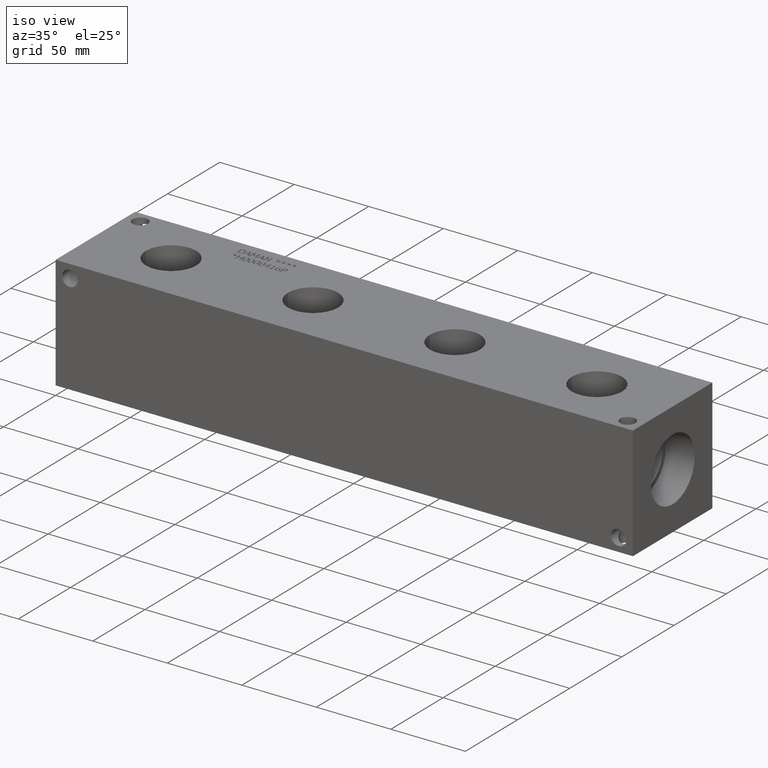
[diagram: clean part render]
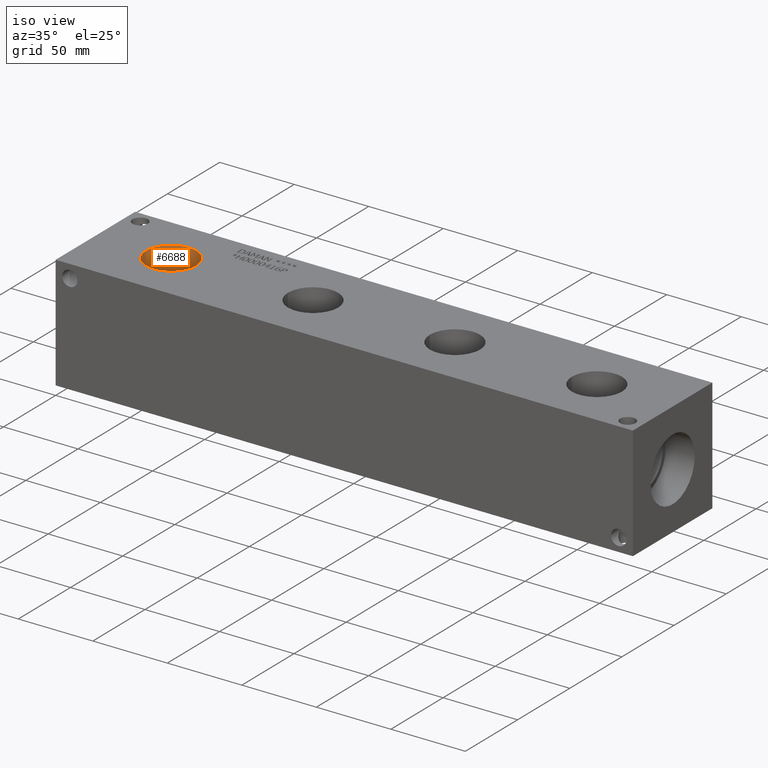
[diagram: same view with one face highlighted and labeled with its STEP entity id]
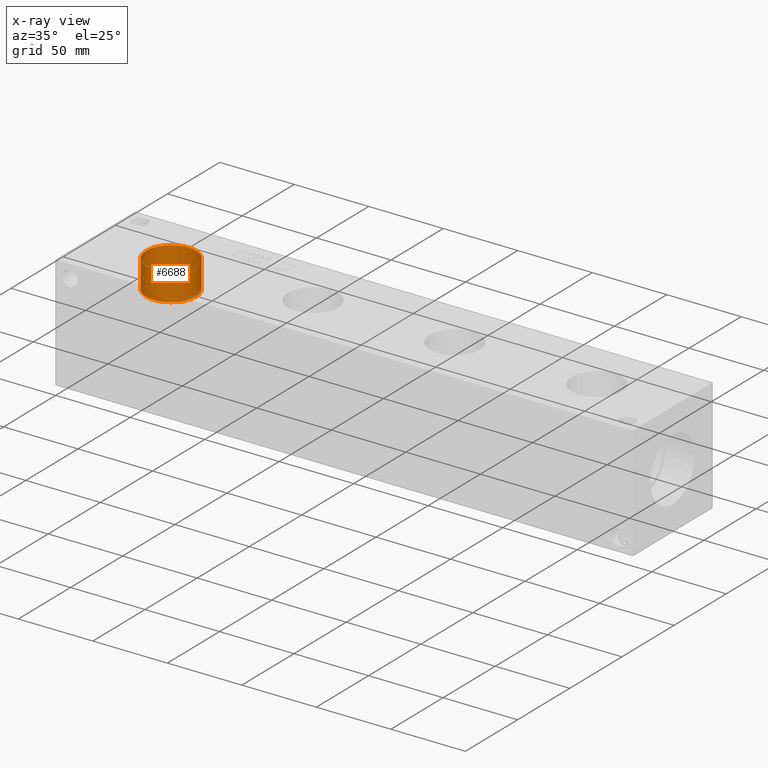
[diagram: x-ray of the same camera — body ghosted, the highlighted face saturated]
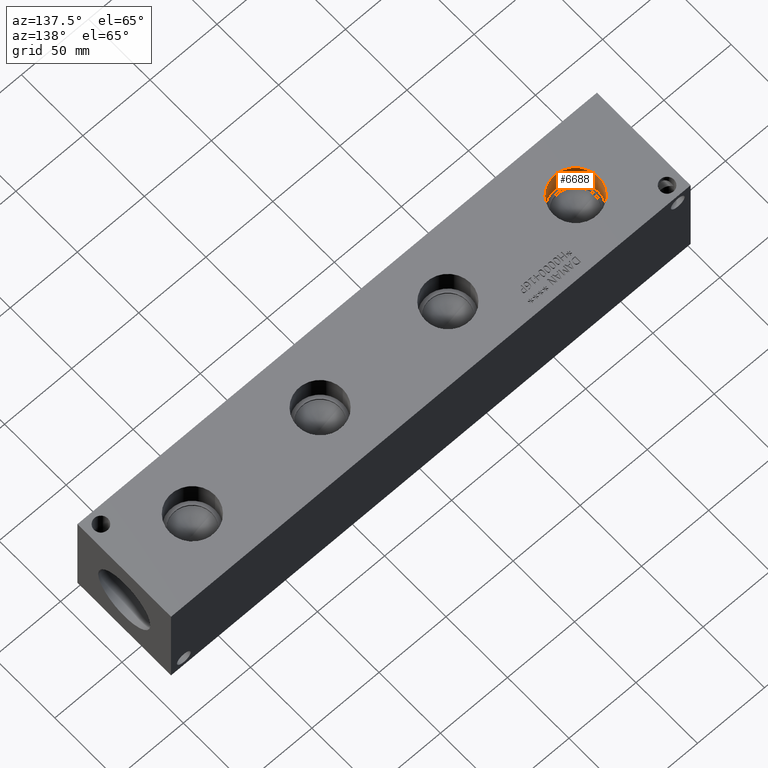
[diagram: same view with one face highlighted and labeled with its STEP entity id]
A machine part, iso view. The second image highlights one B-rep face of the part: STEP entity #6688.
The next image is the same camera in x-ray: the body ghosted, the highlighted face saturated — about 1% of this face is hidden behind the body in this view.
A second angle (auxiliary view) of the same face is appended — the face is thin or edge-on in the first view.
In plain terms, the highlighted cylindrical surface (bore or boss wall) has radius 16.8529 mm, axis along (0, 0, 1).
Its self-contained STEP definition (entity closure, byte-faithful):
#42=CYLINDRICAL_SURFACE('',#7008,16.8529);
#54=CIRCLE('',#6799,16.8529);
#55=CIRCLE('',#6800,16.8529);
#89=CIRCLE('',#7005,16.8529);
#90=CIRCLE('',#7006,16.8529);
#701=FACE_OUTER_BOUND('',#1078,.T.);
#1078=EDGE_LOOP('',(#5909,#5910,#5911,#5912,#5913,#5914));
#1771=LINE('',#11252,#2454);
#2454=VECTOR('',#8285,16.8529);
#3046=VERTEX_POINT('',#10459);
#3047=VERTEX_POINT('',#10460);
#3233=VERTEX_POINT('',#11245);
#3234=VERTEX_POINT('',#11246);
#3800=EDGE_CURVE('',#3046,#3047,#54,.T.);
#3801=EDGE_CURVE('',#3047,#3046,#55,.T.);
#4136=EDGE_CURVE('',#3233,#3234,#89,.T.);
#4137=EDGE_CURVE('',#3234,#3233,#90,.T.);
#4139=EDGE_CURVE('',#3047,#3234,#1771,.T.);
#5909=ORIENTED_EDGE('',*,*,#3800,.F.);
#5910=ORIENTED_EDGE('',*,*,#3801,.F.);
#5911=ORIENTED_EDGE('',*,*,#4139,.T.);
#5912=ORIENTED_EDGE('',*,*,#4136,.F.);
#5913=ORIENTED_EDGE('',*,*,#4137,.F.);
#5914=ORIENTED_EDGE('',*,*,#4139,.F.);
#6688=ADVANCED_FACE('',(#701),#42,.F.);
#6799=AXIS2_PLACEMENT_3D('',#10461,#7584,#7585);
#6800=AXIS2_PLACEMENT_3D('',#10462,#7586,#7587);
#7005=AXIS2_PLACEMENT_3D('',#11247,#8277,#8278);
#7006=AXIS2_PLACEMENT_3D('',#11248,#8279,#8280);
#7008=AXIS2_PLACEMENT_3D('',#11251,#8283,#8284);
#7584=DIRECTION('center_axis',(0.,0.,-1.));
#7585=DIRECTION('ref_axis',(1.,0.,0.));
#7586=DIRECTION('center_axis',(0.,0.,-1.));
#7587=DIRECTION('ref_axis',(1.,0.,0.));
#8277=DIRECTION('center_axis',(0.,0.,1.));
#8278=DIRECTION('ref_axis',(1.,0.,0.));
#8279=DIRECTION('center_axis',(0.,0.,1.));
#8280=DIRECTION('ref_axis',(1.,0.,0.));
#8283=DIRECTION('center_axis',(0.,0.,1.));
#8284=DIRECTION('ref_axis',(1.,0.,0.));
#8285=DIRECTION('',(0.,0.,-1.));
#10459=CARTESIAN_POINT('',(67.6529,38.1,76.2));
#10460=CARTESIAN_POINT('',(33.9471,38.1,76.2));
#10461=CARTESIAN_POINT('Origin',(50.8,38.1,76.2));
#10462=CARTESIAN_POINT('Origin',(50.8,38.1,76.2));
#11245=CARTESIAN_POINT('',(67.6529,38.1,57.2008));
#11246=CARTESIAN_POINT('',(33.9471,38.1,57.2008));
#11247=CARTESIAN_POINT('Origin',(50.8,38.1,57.2008));
#11248=CARTESIAN_POINT('Origin',(50.8,38.1,57.2008));
#11251=CARTESIAN_POINT('Origin',(50.8,38.1,66.7004));
#11252=CARTESIAN_POINT('',(33.9471,38.1,66.7004));